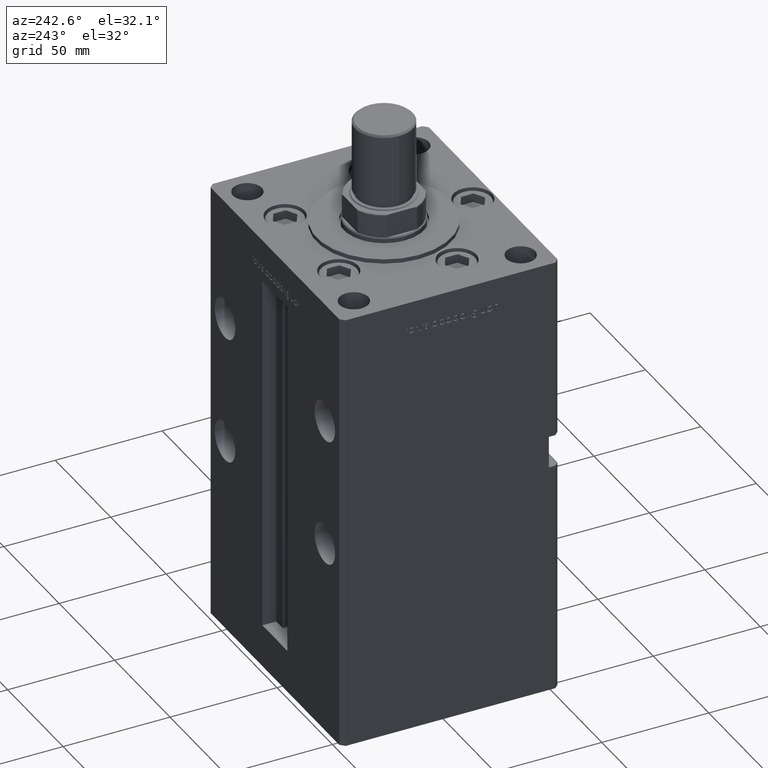
[diagram: clean part render]
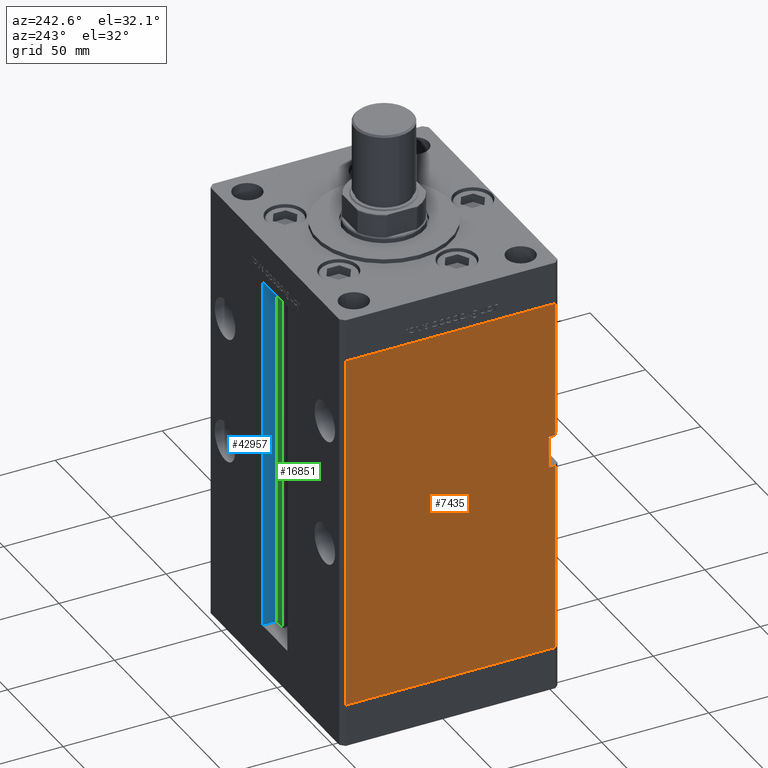
[diagram: same view with three faces highlighted in distinct colors, each labeled with its STEP entity id]
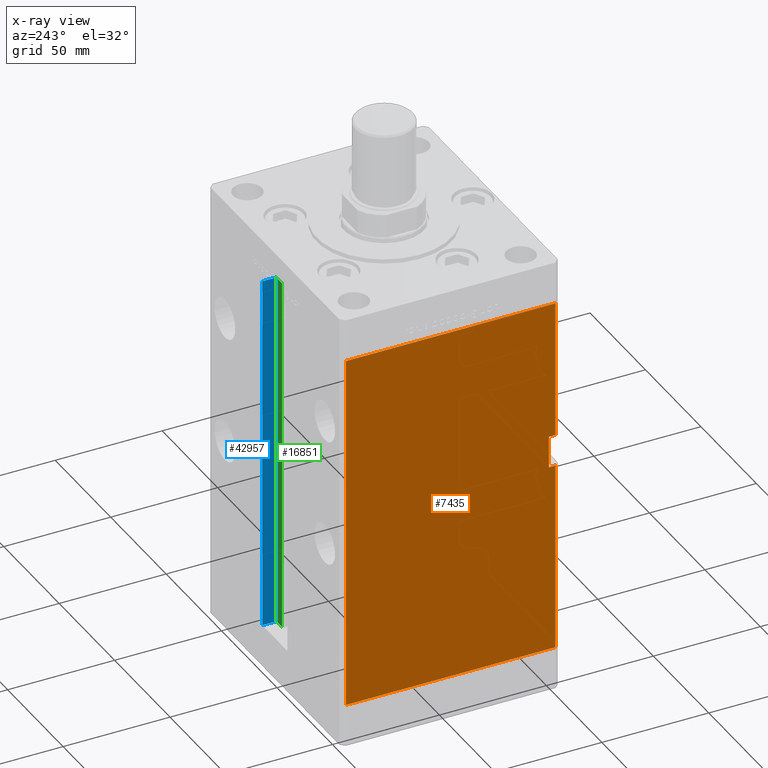
[diagram: x-ray of the same camera — body ghosted, the three highlighted faces saturated]
A machine part, auxiliary view with three faces highlighted in distinct colors.
The next image is the same camera in x-ray (body ghosted, the three faces saturated) — at least one of them is partly hidden behind the body in this view.
Their STEP definitions:

[orange] entity #7435 — the highlighted planar face has unit normal (1, 0, 0).
#877 = LINE ( 'NONE', #42226, #9319 ) ;
#4449 = VERTEX_POINT ( 'NONE', #44691 ) ;
#5317 = CARTESIAN_POINT ( 'NONE',  ( -59.99999999999998579, -48.99999999999998579, 89.00000000000002842 ) ) ;
#5388 = DIRECTION ( 'NONE',  ( 1.000000000000000000, 2.832201593431522219E-16, -0.000000000000000000 ) ) ;
#6534 = ORIENTED_EDGE ( 'NONE', *, *, #53040, .F. ) ;
#6988 = CARTESIAN_POINT ( 'NONE',  ( -59.99999999999998579, -48.99999999999998579, 168.5000000000000000 ) ) ;
#7435 = ADVANCED_FACE ( 'NONE', ( #42967 ), #38372, .F. ) ;
#7535 = VERTEX_POINT ( 'NONE', #51088 ) ;
#7913 = ORIENTED_EDGE ( 'NONE', *, *, #42231, .F. ) ;
#8652 = VECTOR ( 'NONE', #45319, 1000.000000000000000 ) ;
#8688 = LINE ( 'NONE', #21137, #13584 ) ;
#9196 = CARTESIAN_POINT ( 'NONE',  ( -60.00000000000001421, 49.00000000000000000, 168.5000000000000000 ) ) ;
#9319 = VECTOR ( 'NONE', #13324, 1000.000000000000000 ) ;
#11440 = EDGE_CURVE ( 'NONE', #47087, #15021, #21158, .T. ) ;
#13324 = DIRECTION ( 'NONE',  ( -0.000000000000000000, -0.000000000000000000, -1.000000000000000000 ) ) ;
#13576 = CARTESIAN_POINT ( 'NONE',  ( -60.00000000000001421, 49.00000000000000000, 0.000000000000000000 ) ) ;
#13584 = VECTOR ( 'NONE', #45979, 1000.000000000000000 ) ;
#14206 = AXIS2_PLACEMENT_3D ( 'NONE', #9196, #5388, #34842 ) ;
#14301 = ORIENTED_EDGE ( 'NONE', *, *, #26973, .T. ) ;
#15021 = VERTEX_POINT ( 'NONE', #16348 ) ;
#15050 = CARTESIAN_POINT ( 'NONE',  ( -60.00000000000001421, 49.00000000000000000, 0.000000000000000000 ) ) ;
#16308 = DIRECTION ( 'NONE',  ( -0.000000000000000000, -1.000000000000000000, -0.000000000000000000 ) ) ;
#16348 = CARTESIAN_POINT ( 'NONE',  ( -59.99999999999998579, -48.99999999999998579, 0.000000000000000000 ) ) ;
#21137 = CARTESIAN_POINT ( 'NONE',  ( -60.00000000000001421, 49.00000000000000000, 168.5000000000000000 ) ) ;
#21158 = LINE ( 'NONE', #13576, #26405 ) ;
#21954 = DIRECTION ( 'NONE',  ( -0.000000000000000000, -0.000000000000000000, -1.000000000000000000 ) ) ;
#22065 = VERTEX_POINT ( 'NONE', #6988 ) ;
#22774 = VECTOR ( 'NONE', #21954, 1000.000000000000000 ) ;
#23380 = ORIENTED_EDGE ( 'NONE', *, *, #34542, .F. ) ;
#24175 = CARTESIAN_POINT ( 'NONE',  ( -59.99999999999998579, -45.99999999999999289, 104.0000000000000426 ) ) ;
#24206 = DIRECTION ( 'NONE',  ( 0.000000000000000000, 0.000000000000000000, -1.000000000000000000 ) ) ;
#24672 = LINE ( 'NONE', #27460, #40934 ) ;
#25244 = EDGE_CURVE ( 'NONE', #25839, #15021, #45743, .T. ) ;
#25470 = VECTOR ( 'NONE', #29312, 1000.000000000000000 ) ;
#25839 = VERTEX_POINT ( 'NONE', #5317 ) ;
#26405 = VECTOR ( 'NONE', #37352, 1000.000000000000000 ) ;
#26973 = EDGE_CURVE ( 'NONE', #32767, #7535, #24672, .T. ) ;
#27460 = CARTESIAN_POINT ( 'NONE',  ( -59.99999999999998579, -45.99999999999999289, 104.0000000000000426 ) ) ;
#28049 = EDGE_CURVE ( 'NONE', #4449, #25839, #33093, .T. ) ;
#28846 = CARTESIAN_POINT ( 'NONE',  ( -60.00000000000001421, 49.00000000000000000, 168.5000000000000000 ) ) ;
#29312 = DIRECTION ( 'NONE',  ( -0.000000000000000000, -1.000000000000000000, -0.000000000000000000 ) ) ;
#32574 = CARTESIAN_POINT ( 'NONE',  ( -59.99999999999998579, -45.99999999999999289, 104.0000000000000426 ) ) ;
#32767 = VERTEX_POINT ( 'NONE', #24175 ) ;
#33093 = LINE ( 'NONE', #49595, #25470 ) ;
#34028 = ORIENTED_EDGE ( 'NONE', *, *, #25244, .F. ) ;
#34217 = EDGE_LOOP ( 'NONE', ( #34028, #51536, #6534, #14301, #7913, #23380, #49225, #49476 ) ) ;
#34371 = CARTESIAN_POINT ( 'NONE',  ( -59.99999999999998579, -48.99999999999998579, 168.5000000000000000 ) ) ;
#34542 = EDGE_CURVE ( 'NONE', #43141, #22065, #8688, .T. ) ;
#34842 = DIRECTION ( 'NONE',  ( -2.832201593431522219E-16, 1.000000000000000000, 0.000000000000000000 ) ) ;
#37352 = DIRECTION ( 'NONE',  ( 2.832201593431522219E-16, -1.000000000000000000, 0.000000000000000000 ) ) ;
#38372 = PLANE ( 'NONE',  #14206 ) ;
#39855 = CARTESIAN_POINT ( 'NONE',  ( -60.00000000000001421, 49.00000000000000000, 168.5000000000000000 ) ) ;
#40934 = VECTOR ( 'NONE', #16308, 1000.000000000000000 ) ;
#42226 = CARTESIAN_POINT ( 'NONE',  ( -59.99999999999998579, -48.99999999999998579, 168.5000000000000000 ) ) ;
#42231 = EDGE_CURVE ( 'NONE', #22065, #7535, #877, .T. ) ;
#42967 = FACE_OUTER_BOUND ( 'NONE', #34217, .T. ) ;
#43141 = VERTEX_POINT ( 'NONE', #39855 ) ;
#44691 = CARTESIAN_POINT ( 'NONE',  ( -59.99999999999998579, -45.99999999999999289, 89.00000000000002842 ) ) ;
#44735 = LINE ( 'NONE', #32574, #50130 ) ;
#45319 = DIRECTION ( 'NONE',  ( -0.000000000000000000, -0.000000000000000000, -1.000000000000000000 ) ) ;
#45743 = LINE ( 'NONE', #34371, #22774 ) ;
#45979 = DIRECTION ( 'NONE',  ( 2.832201593431522219E-16, -1.000000000000000000, 0.000000000000000000 ) ) ;
#47087 = VERTEX_POINT ( 'NONE', #15050 ) ;
#49225 = ORIENTED_EDGE ( 'NONE', *, *, #50485, .T. ) ;
#49476 = ORIENTED_EDGE ( 'NONE', *, *, #11440, .T. ) ;
#49595 = CARTESIAN_POINT ( 'NONE',  ( -59.99999999999998579, -45.99999999999999289, 89.00000000000002842 ) ) ;
#50130 = VECTOR ( 'NONE', #24206, 1000.000000000000000 ) ;
#50485 = EDGE_CURVE ( 'NONE', #43141, #47087, #50719, .T. ) ;
#50719 = LINE ( 'NONE', #28846, #8652 ) ;
#51088 = CARTESIAN_POINT ( 'NONE',  ( -59.99999999999998579, -48.99999999999998579, 104.0000000000000426 ) ) ;
#51536 = ORIENTED_EDGE ( 'NONE', *, *, #28049, .F. ) ;
#53040 = EDGE_CURVE ( 'NONE', #32767, #4449, #44735, .T. ) ;

[blue] entity #42957 — the highlighted planar face has unit normal (1, 0, 0).
#587 = CARTESIAN_POINT ( 'NONE',  ( 11.24999999999999822, 44.50000000000000711, 0.000000000000000000 ) ) ;
#4587 = VECTOR ( 'NONE', #37533, 1000.000000000000000 ) ;
#4819 = CARTESIAN_POINT ( 'NONE',  ( 11.24999999999999822, 51.00000000000000711, 0.000000000000000000 ) ) ;
#5580 = EDGE_LOOP ( 'NONE', ( #22350, #32471, #24209, #45872 ) ) ;
#5698 = LINE ( 'NONE', #587, #14253 ) ;
#7581 = CARTESIAN_POINT ( 'NONE',  ( 11.24999999999999822, 44.50000000000000711, 0.000000000000000000 ) ) ;
#8669 = EDGE_CURVE ( 'NONE', #43448, #33619, #5698, .T. ) ;
#8968 = DIRECTION ( 'NONE',  ( 0.000000000000000000, 1.000000000000000000, 0.000000000000000000 ) ) ;
#10413 = PLANE ( 'NONE',  #46519 ) ;
#11377 = DIRECTION ( 'NONE',  ( -0.000000000000000000, -0.000000000000000000, 1.000000000000000000 ) ) ;
#14253 = VECTOR ( 'NONE', #8968, 1000.000000000000000 ) ;
#16180 = LINE ( 'NONE', #25065, #51988 ) ;
#19500 = EDGE_CURVE ( 'NONE', #33619, #49677, #49983, .T. ) ;
#19924 = EDGE_CURVE ( 'NONE', #49677, #50138, #16180, .T. ) ;
#22350 = ORIENTED_EDGE ( 'NONE', *, *, #19500, .F. ) ;
#24209 = ORIENTED_EDGE ( 'NONE', *, *, #44713, .T. ) ;
#25065 = CARTESIAN_POINT ( 'NONE',  ( 11.24999999999999822, 0.000000000000000000, 168.5000000000000000 ) ) ;
#31218 = DIRECTION ( 'NONE',  ( 0.000000000000000000, 0.000000000000000000, -1.000000000000000000 ) ) ;
#32471 = ORIENTED_EDGE ( 'NONE', *, *, #8669, .F. ) ;
#33619 = VERTEX_POINT ( 'NONE', #37059 ) ;
#34005 = CARTESIAN_POINT ( 'NONE',  ( 11.24999999999999822, 44.50000000000000711, 168.5000000000000000 ) ) ;
#37059 = CARTESIAN_POINT ( 'NONE',  ( 11.24999999999999822, 51.00000000000000711, 0.000000000000000000 ) ) ;
#37533 = DIRECTION ( 'NONE',  ( -0.000000000000000000, -0.000000000000000000, 1.000000000000000000 ) ) ;
#38247 = DIRECTION ( 'NONE',  ( 1.000000000000000000, -0.000000000000000000, 0.000000000000000000 ) ) ;
#38513 = CARTESIAN_POINT ( 'NONE',  ( 11.24999999999999822, 44.50000000000000711, 0.000000000000000000 ) ) ;
#41006 = DIRECTION ( 'NONE',  ( -0.000000000000000000, -1.000000000000000000, 0.000000000000000000 ) ) ;
#42957 = ADVANCED_FACE ( 'NONE', ( #47172 ), #10413, .F. ) ;
#43448 = VERTEX_POINT ( 'NONE', #44653 ) ;
#44606 = LINE ( 'NONE', #7581, #50000 ) ;
#44653 = CARTESIAN_POINT ( 'NONE',  ( 11.24999999999999822, 44.50000000000000711, 0.000000000000000000 ) ) ;
#44713 = EDGE_CURVE ( 'NONE', #43448, #50138, #44606, .T. ) ;
#45872 = ORIENTED_EDGE ( 'NONE', *, *, #19924, .F. ) ;
#46519 = AXIS2_PLACEMENT_3D ( 'NONE', #38513, #38247, #31218 ) ;
#47172 = FACE_OUTER_BOUND ( 'NONE', #5580, .T. ) ;
#49637 = CARTESIAN_POINT ( 'NONE',  ( 11.24999999999999112, 51.00000000000000711, 168.5000000000000000 ) ) ;
#49677 = VERTEX_POINT ( 'NONE', #49637 ) ;
#49983 = LINE ( 'NONE', #4819, #4587 ) ;
#50000 = VECTOR ( 'NONE', #11377, 1000.000000000000000 ) ;
#50138 = VERTEX_POINT ( 'NONE', #34005 ) ;
#51988 = VECTOR ( 'NONE', #41006, 1000.000000000000000 ) ;

[green] entity #16851 — the highlighted planar face has unit normal (0, -1, 0).
#7581 = CARTESIAN_POINT ( 'NONE',  ( 11.24999999999999822, 44.50000000000000711, 0.000000000000000000 ) ) ;
#10260 = LINE ( 'NONE', #46742, #49484 ) ;
#11377 = DIRECTION ( 'NONE',  ( -0.000000000000000000, -0.000000000000000000, 1.000000000000000000 ) ) ;
#12579 = VERTEX_POINT ( 'NONE', #42088 ) ;
#14425 = CARTESIAN_POINT ( 'NONE',  ( 6.183333333333997928, 44.50000000000000711, 0.000000000000000000 ) ) ;
#15303 = ORIENTED_EDGE ( 'NONE', *, *, #30102, .F. ) ;
#16477 = CARTESIAN_POINT ( 'NONE',  ( 0.000000000000000000, 44.50000000000000711, 168.5000000000000000 ) ) ;
#16851 = ADVANCED_FACE ( 'NONE', ( #41189 ), #17673, .F. ) ;
#17402 = DIRECTION ( 'NONE',  ( 0.000000000000000000, -1.000000000000000000, 0.000000000000000000 ) ) ;
#17673 = PLANE ( 'NONE',  #27839 ) ;
#20535 = LINE ( 'NONE', #16477, #39345 ) ;
#23037 = EDGE_CURVE ( 'NONE', #12579, #48565, #10260, .T. ) ;
#23677 = EDGE_LOOP ( 'NONE', ( #39482, #40677, #49625, #15303 ) ) ;
#24540 = LINE ( 'NONE', #14425, #33650 ) ;
#25502 = CARTESIAN_POINT ( 'NONE',  ( 6.183333333333997928, 44.50000000000000711, 0.000000000000000000 ) ) ;
#27839 = AXIS2_PLACEMENT_3D ( 'NONE', #25502, #17402, #34133 ) ;
#28893 = DIRECTION ( 'NONE',  ( -1.000000000000000000, 0.000000000000000000, 0.000000000000000000 ) ) ;
#29631 = DIRECTION ( 'NONE',  ( 1.000000000000000000, 0.000000000000000000, 0.000000000000000000 ) ) ;
#30102 = EDGE_CURVE ( 'NONE', #50138, #48565, #20535, .T. ) ;
#33650 = VECTOR ( 'NONE', #29631, 1000.000000000000000 ) ;
#34005 = CARTESIAN_POINT ( 'NONE',  ( 11.24999999999999822, 44.50000000000000711, 168.5000000000000000 ) ) ;
#34133 = DIRECTION ( 'NONE',  ( 0.000000000000000000, -0.000000000000000000, -1.000000000000000000 ) ) ;
#38628 = DIRECTION ( 'NONE',  ( -0.000000000000000000, -0.000000000000000000, 1.000000000000000000 ) ) ;
#39345 = VECTOR ( 'NONE', #28893, 1000.000000000000000 ) ;
#39482 = ORIENTED_EDGE ( 'NONE', *, *, #44713, .F. ) ;
#40677 = ORIENTED_EDGE ( 'NONE', *, *, #46076, .F. ) ;
#41189 = FACE_OUTER_BOUND ( 'NONE', #23677, .T. ) ;
#42088 = CARTESIAN_POINT ( 'NONE',  ( 6.183333333333997928, 44.50000000000000711, 0.000000000000000000 ) ) ;
#43448 = VERTEX_POINT ( 'NONE', #44653 ) ;
#44606 = LINE ( 'NONE', #7581, #50000 ) ;
#44653 = CARTESIAN_POINT ( 'NONE',  ( 11.24999999999999822, 44.50000000000000711, 0.000000000000000000 ) ) ;
#44713 = EDGE_CURVE ( 'NONE', #43448, #50138, #44606, .T. ) ;
#46076 = EDGE_CURVE ( 'NONE', #12579, #43448, #24540, .T. ) ;
#46742 = CARTESIAN_POINT ( 'NONE',  ( 6.183333333333997928, 44.50000000000000711, 0.000000000000000000 ) ) ;
#48565 = VERTEX_POINT ( 'NONE', #52436 ) ;
#49484 = VECTOR ( 'NONE', #38628, 1000.000000000000000 ) ;
#49625 = ORIENTED_EDGE ( 'NONE', *, *, #23037, .T. ) ;
#50000 = VECTOR ( 'NONE', #11377, 1000.000000000000000 ) ;
#50138 = VERTEX_POINT ( 'NONE', #34005 ) ;
#52436 = CARTESIAN_POINT ( 'NONE',  ( 6.183333333333997928, 44.50000000000000711, 168.5000000000000000 ) ) ;